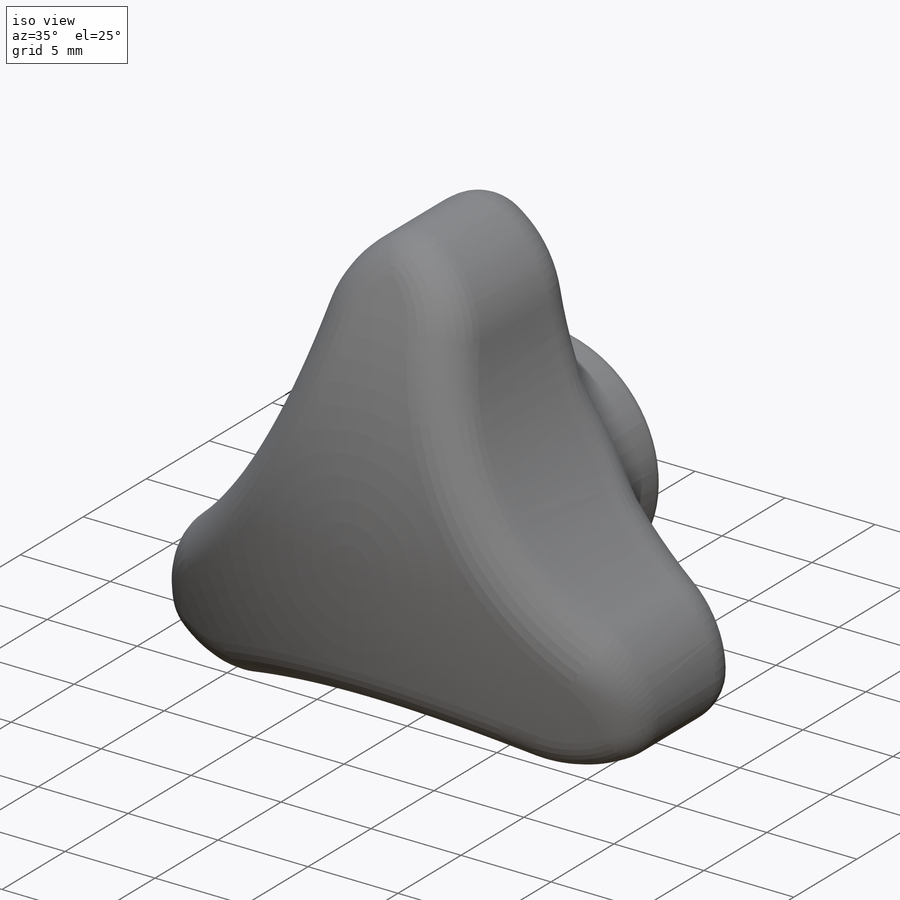
[diagram: iso view]
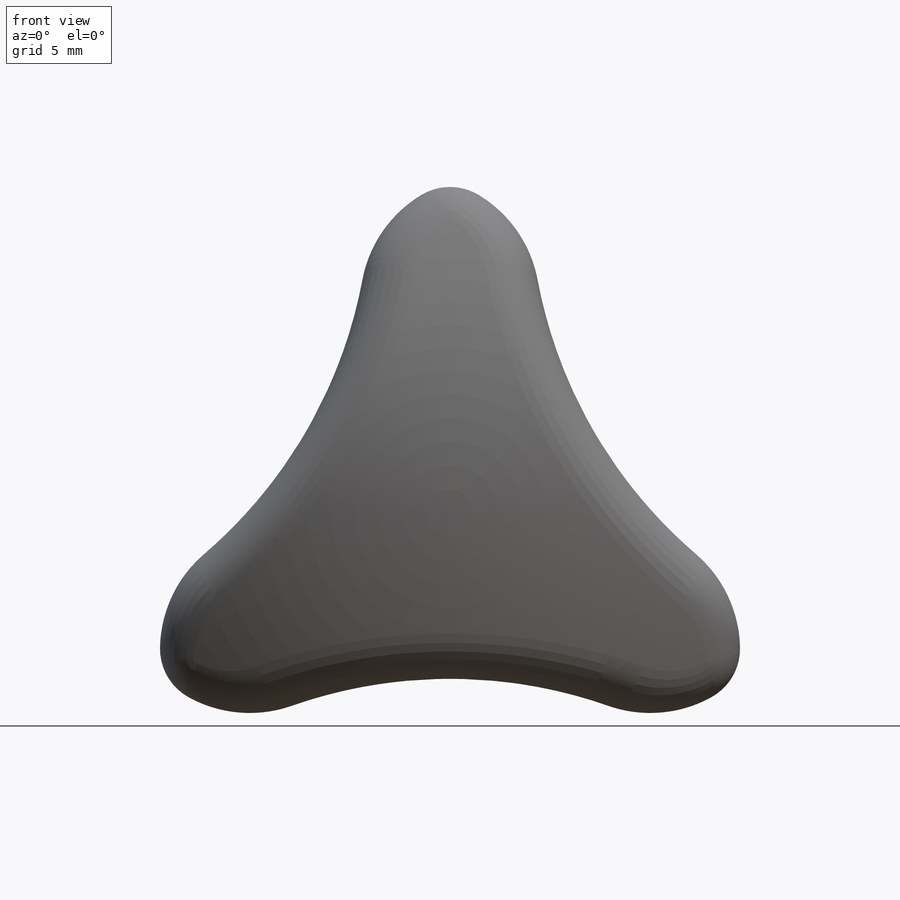
[diagram: front view]
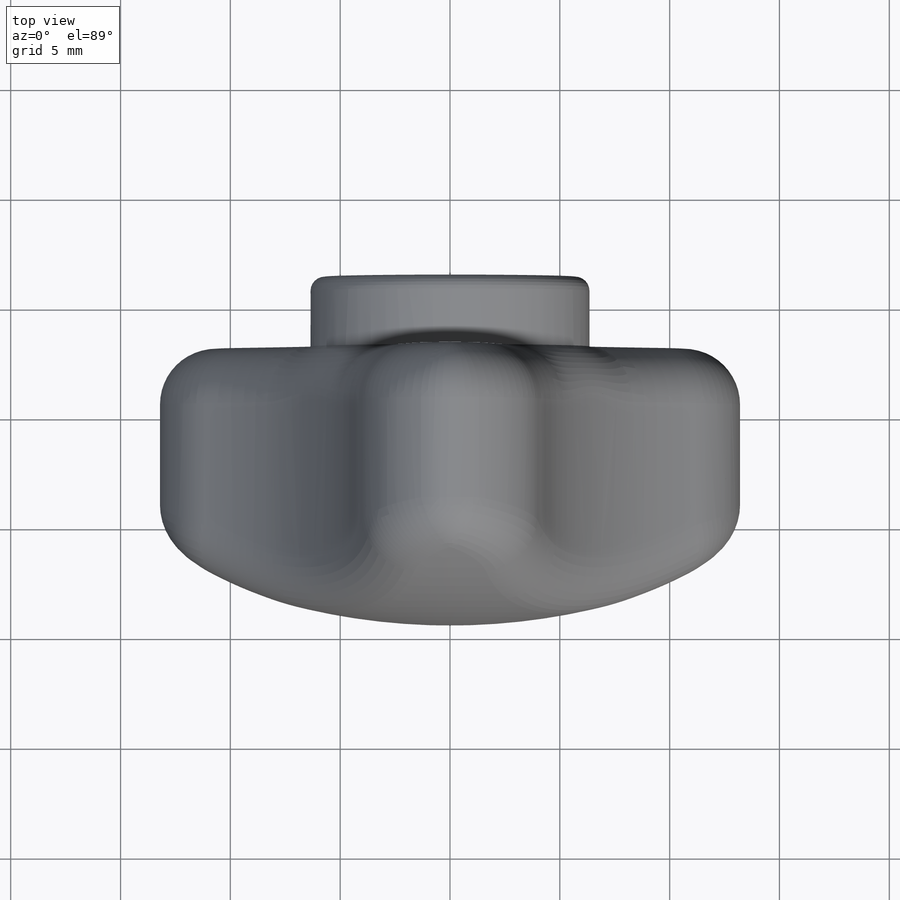
[diagram: top view]
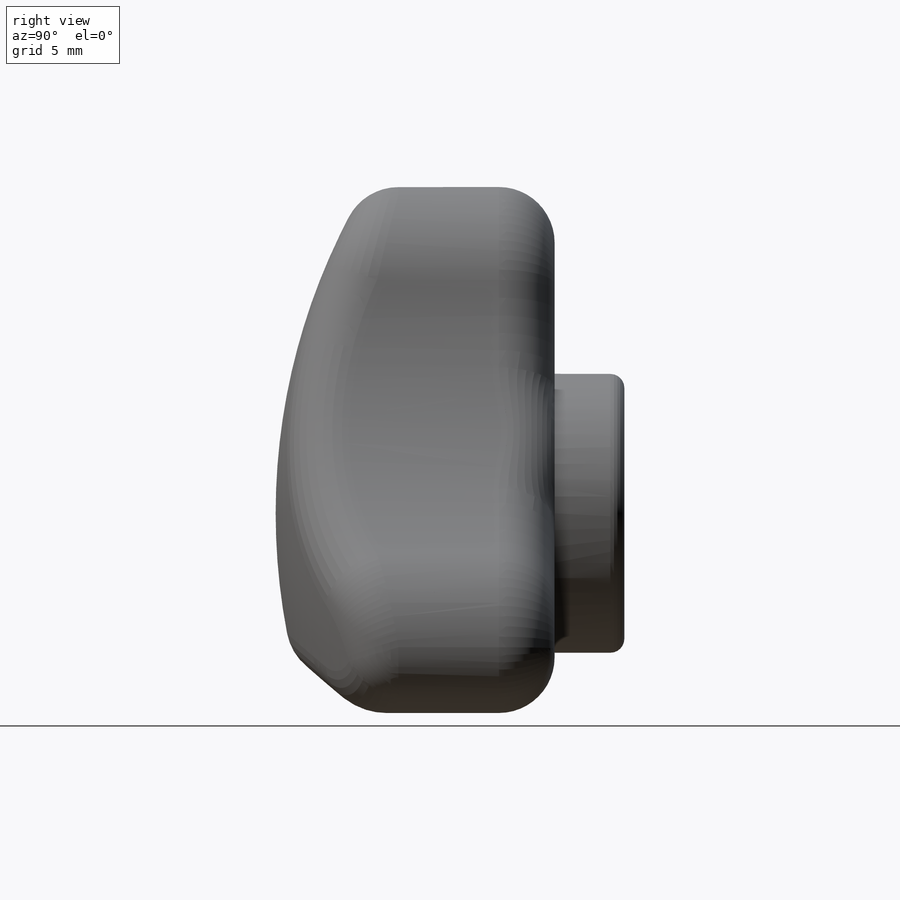
[diagram: right view]
SOLIDWORKS PART (.sldprt)
format: sldprt  version: not decoded by parser v0  size: 942,080 bytes
history: native  units: mm
features: sketch x7, revolve x3, cut_revolve x3, fillet x3, material x1, pattern_linear x1, boolean_combine x1, cut_extrude x1, pattern_circular x1 (+13 scaffold rows collapsed)
feature tree (34):
  scaffold x13  (default folders/planes/origin — collapsed)
  material  "Material <not specified>"
  sketch  "Sketch1"  dims[c1.Screw Dia=4.826mm c1.Thread Length=12.7mm c1.Head Height=5.0546mm c1.Flange Dia=9.0678mm c2.Head Height=5.0546mm c2.Hex=~2.38125mm c2.D1=~2.887112mm c2.D2=~0.55245mm c2.D3=~7.70763mm c2.D4=5.0546mm c2.D5=10.1092mm c2.D6=5.0546mm c3.Head Height=5.0546mm c3.D5=10.1092mm c3.D6=~8.671269mm c4.D5=~14.091405mm c4.D6=~8.671269mm c5.D5=~14.091405mm c5.D6=~8.671269mm c6.D5=10.1092mm c6.D6=7.5819mm c7.D5=10.1092mm c7.D6=~8.671269mm c8.D5=~14.091405mm c8.D6=~8.671269mm c9.D5=~14.091405mm c9.D6=10.1092mm c10.D5=~5.243356mm c10.D6=~1.394202mm c11.D5=~5.243356mm c11.D6=~1.394202mm c12.D5=~5.243356mm c12.D6=10.1092mm c13.D5=~8.671269mm c13.D6=~14.091405mm c13.D4=10.1092mm c14.D5=~14.091405mm c14.D4=~8.671269mm c15.D5=10.1092mm c15.Head Height=2.2098mm]
  revolve  "Revolve1"  Angle=360deg
  sketch  "Sketch2"  dims[c1.D1=~0.099219mm c1.D2=~0.198437mm c1.Thread Pitch=~0.79375mm c1.D4=~0.79375mm c1.D3=~0.642085mm c2.D3=60.0deg]
  cut_revolve  "Cut-Revolve1"  Angle=360deg
  pattern_linear  "LPattern1"  Count1=16 Count2=2 Spacing1=0.79375mm Spacing2=0.79375mm
  sketch  "Sketch8"  dims[D1=~0.396875mm D2=~0.396875mm]
  revolve  "Revolve4"  Angle=360deg
  boolean_combine  "Combine1"
  sketch  "Sketch9"  dims[c1.D1=~0.950949mm c2.D1=45.0deg]
  cut_revolve  "Cut-Revolve4"  Angle=360deg
  sketch  "Sketch5"  dims[c1.D=3.175mm c1.B=31.75mm c1.D1=6.35mm c1.D2=15.875mm c1.D3=1.27mm c1.C=14.2875mm c1.A=62.992mm c1.D5=7.9375mm c2.D2=15.494mm c3.D2=270.0deg c3.B=12.7mm c3.A=29.972mm c3.C=12.7mm c4.A=30.1498mm]
  revolve  "Revolve3"  Angle=360deg
  sketch  "Sketch6"  dims[c1.D2=15.0749mm c1.D3=6.35mm c1.D4=31.496mm c2.D3=22.225mm c2.D4=63.5mm c3.D3=22.05mm c3.D1=31.496mm c4.D1=45.0deg c4.D3=~36.209233mm c4.D4=31.496mm c5.D4=20.0deg c5.D5=31.496mm c6.D5=10.0deg c6.D4=31.496mm c7.D4=10.0deg c8.D4=31.496mm c9.D4=20.0deg c9.D1=33.1216mm c10.D1=45.0deg c11.D1=31.496mm c12.D1=120.0deg c12.D3=38.1mm c13.D3=45.0deg c14.D3=31.75mm c15.D3=20.0deg c15.D4=~37.305887mm c16.D4=35.0deg c17.D4=~5.555887mm c17.D3=37.8mm c18.D3=60.0deg c18.D4=19.05mm]
  cut_extrude  "Cut-Extrude1"  [1 undecoded]
  pattern_circular  "CirPattern2"  Count=3 Angle=360deg
  sketch  "Sketch7"  dims[c1.D1=1.0mm c1.D2=1.0mm c1.D3=~5.666667mm c2.D1=1.0mm c2.D3=~4.233333mm]
  cut_revolve  "Cut-Revolve3"  Angle=360deg
  fillet  "Fillet1"  Radius=2.54mm
  fillet  "Fillet2"  Radius=0.635mm
  fillet  "Fillet3"  Radius=2.54mm
decode coverage: 18 of 20 modeling features carry decoded parameters
note: ~ marks probable driven/reference dimensions
note: 1 parameter value undecoded
note: suppression state not decoded; provenance and decode notes live in map.json
